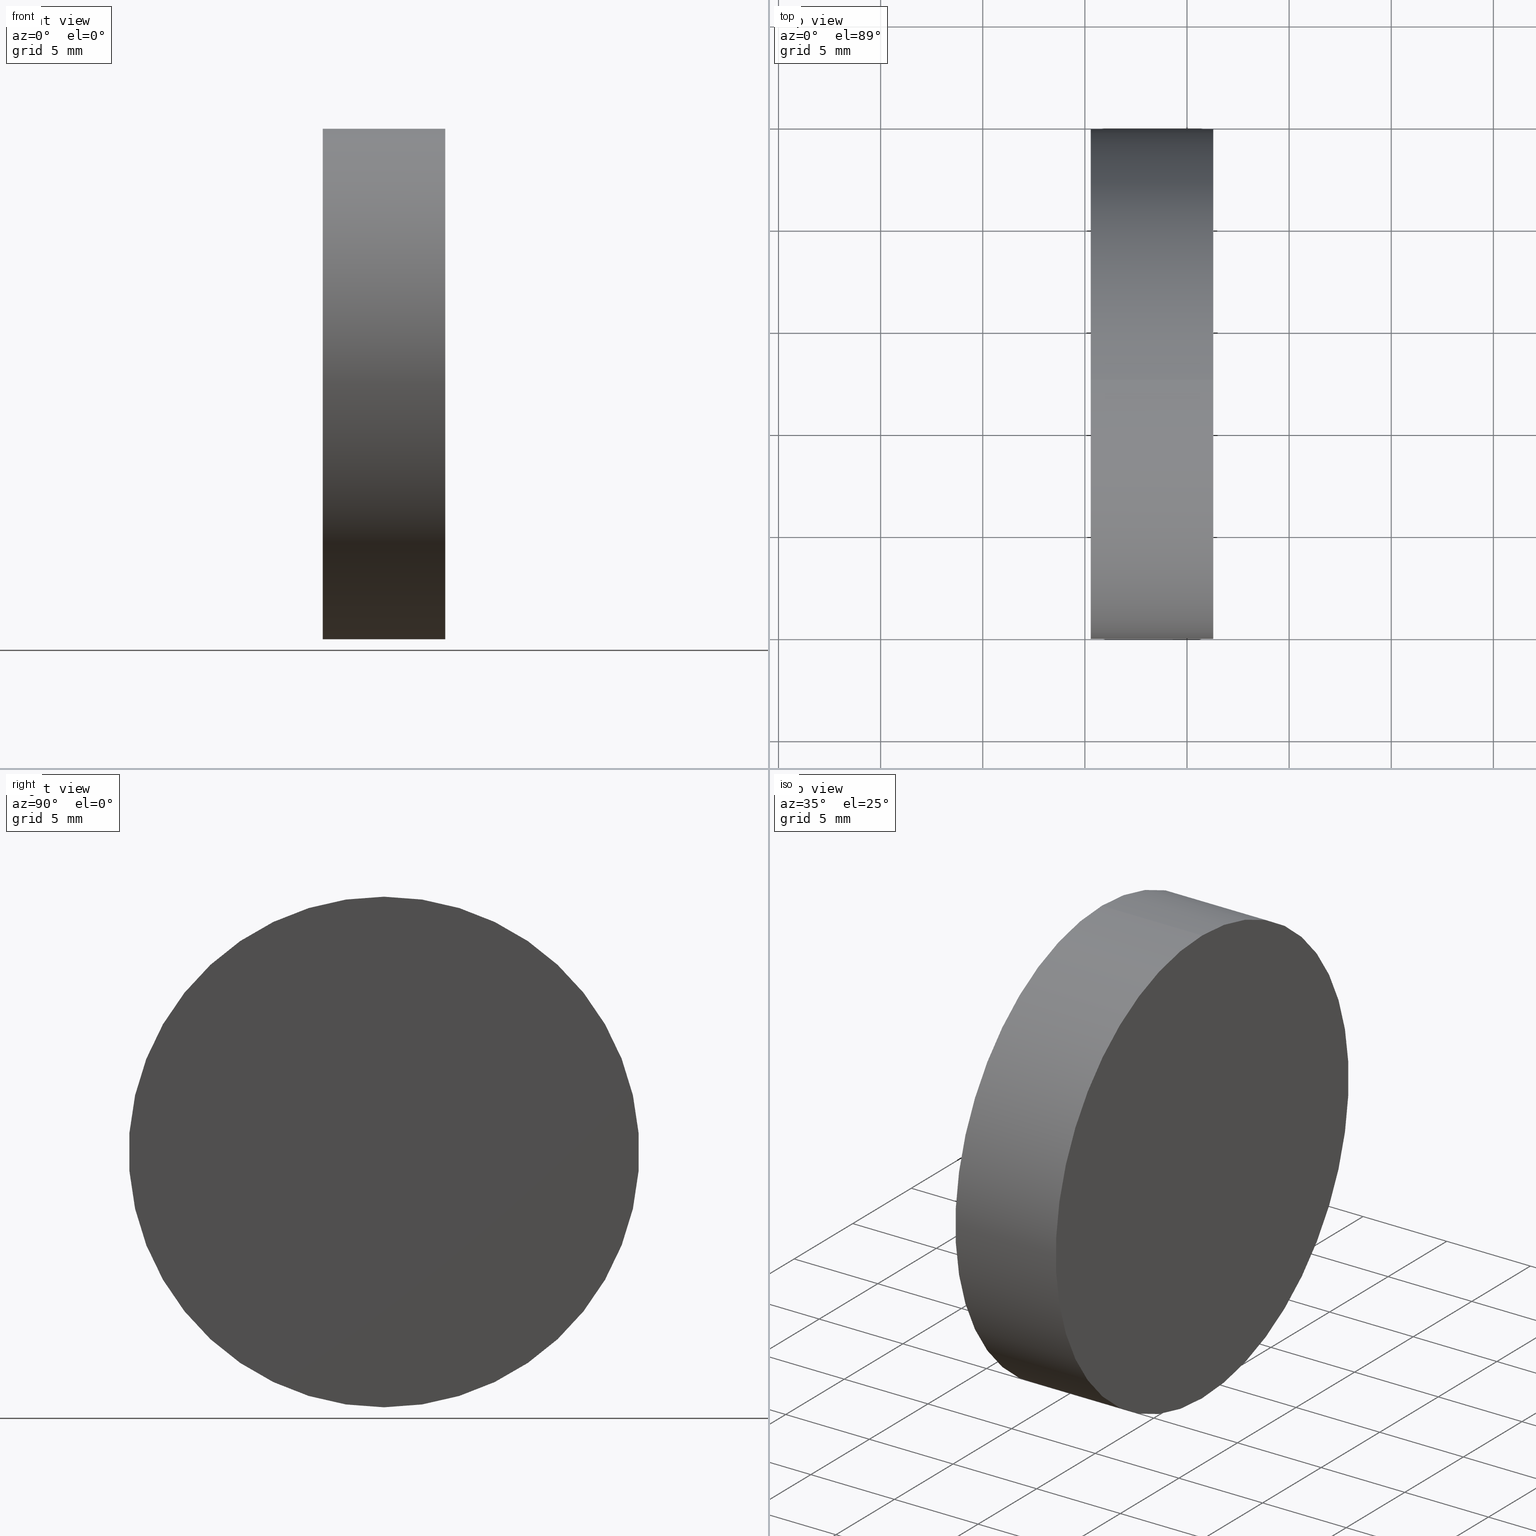
[diagram: canonical four-view strip — front | top / right | iso, engineering-drawing reading convention]
A machine part, canonical four-view strip (front | top / right | iso — engineering-drawing reading convention). The complete STEP part file that produces these views, byte-faithful:
ISO-10303-21;
HEADER;
FILE_DESCRIPTION (( 'STEP AP214' ),
    '1' );
FILE_NAME ('260072.STEP',
    '2019-07-16T03:29:19',
    ( '' ),
    ( '' ),
    'SwSTEP 2.0',
    'SolidWorks 2016',
    '' );
FILE_SCHEMA (( 'AUTOMOTIVE_DESIGN' ));
ENDSEC;

DATA;
#1 = PRODUCT_CONTEXT ( 'NONE', #104, 'mechanical' ) ;
#2 = MECHANICAL_DESIGN_GEOMETRIC_PRESENTATION_REPRESENTATION (  '', ( #93 ), #7 ) ;
#3 = SHAPE_DEFINITION_REPRESENTATION ( #79, #115 ) ;
#4 = ORIENTED_EDGE ( 'NONE', *, *, #132, .T. ) ;
#5 = LINE ( 'NONE', #103, #73 ) ;
#6 = PRODUCT_DEFINITION_CONTEXT ( 'detailed design', #54, 'design' ) ;
#7 =( GEOMETRIC_REPRESENTATION_CONTEXT ( 3 ) GLOBAL_UNCERTAINTY_ASSIGNED_CONTEXT ( ( #99 ) ) GLOBAL_UNIT_ASSIGNED_CONTEXT ( ( #113, #17, #57 ) ) REPRESENTATION_CONTEXT ( 'NONE', 'WORKASPACE' ) );
#8 = AXIS2_PLACEMENT_3D ( 'NONE', #96, #25, #125 ) ;
#9 = ORIENTED_EDGE ( 'NONE', *, *, #37, .T. ) ;
#10 = DIRECTION ( 'NONE',  ( -1.000000000000000000, -0.0000000000000000000, -0.0000000000000000000 ) ) ;
#11 = ADVANCED_FACE ( 'NONE', ( #62 ), #78, .T. ) ;
#12 = FILL_AREA_STYLE_COLOUR ( '', #121 ) ;
#13 = PRODUCT_DEFINITION_FORMATION_WITH_SPECIFIED_SOURCE ( '�κ�', '', #39, .NOT_KNOWN. ) ;
#14 = DIRECTION ( 'NONE',  ( 0.0000000000000000000, 0.0000000000000000000, 1.000000000000000000 ) ) ;
#15 = ORIENTED_EDGE ( 'NONE', *, *, #31, .F. ) ;
#16 = FILL_AREA_STYLE ('',( #77 ) ) ;
#17 =( NAMED_UNIT ( * ) PLANE_ANGLE_UNIT ( ) SI_UNIT ( $, .RADIAN. ) );
#18 = PRODUCT_RELATED_PRODUCT_CATEGORY ( 'part', '', ( #39 ) ) ;
#19 = CIRCLE ( 'NONE', #43, 12.49999999999999600 ) ;
#20 = ORIENTED_EDGE ( 'NONE', *, *, #49, .T. ) ;
#21 = DIRECTION ( 'NONE',  ( -1.000000000000000000, -0.0000000000000000000, -0.0000000000000000000 ) ) ;
#22 = CARTESIAN_POINT ( 'NONE',  ( 266.2862081684760400, 77.29317934901541800, 12.49999999999999600 ) ) ;
#23 = FILL_AREA_STYLE ('',( #12 ) ) ;
#24 = CIRCLE ( 'NONE', #117, 12.49999999999999600 ) ;
#25 = DIRECTION ( 'NONE',  ( -1.000000000000000000, 0.0000000000000000000, -0.0000000000000000000 ) ) ;
#26 = STYLED_ITEM ( 'NONE', ( #131 ), #120 ) ;
#27 = EDGE_LOOP ( 'NONE', ( #69, #20, #35, #118 ) ) ;
#28 = PRESENTATION_STYLE_ASSIGNMENT (( #53 ) ) ;
#29 = CIRCLE ( 'NONE', #110, 12.49999999999999600 ) ;
#30 = SURFACE_STYLE_FILL_AREA ( #16 ) ;
#31 = EDGE_CURVE ( 'NONE', #128, #130, #86, .T. ) ;
#32 = FACE_OUTER_BOUND ( 'NONE', #27, .T. ) ;
#33 = VECTOR ( 'NONE', #64, 1000.000000000000000 ) ;
#34 =( NAMED_UNIT ( * ) SI_UNIT ( $, .STERADIAN. ) SOLID_ANGLE_UNIT ( ) );
#35 = ORIENTED_EDGE ( 'NONE', *, *, #132, .F. ) ;
#36 = DIRECTION ( 'NONE',  ( 1.000000000000000000, 0.0000000000000000000, 0.0000000000000000000 ) ) ;
#37 = EDGE_CURVE ( 'NONE', #128, #71, #5, .T. ) ;
#38 = PLANE ( 'NONE',  #135 ) ;
#39 = PRODUCT ( '260072', '260072', '', ( #1 ) ) ;
#40 = PRESENTATION_LAYER_ASSIGNMENT (  '', '', ( #26 ) ) ;
#41 = ORIENTED_EDGE ( 'NONE', *, *, #91, .T. ) ;
#42 = EDGE_CURVE ( 'NONE', #50, #71, #24, .T. ) ;
#43 = AXIS2_PLACEMENT_3D ( 'NONE', #88, #21, #94 ) ;
#44 = CARTESIAN_POINT ( 'NONE',  ( 254.0008019926160300, 77.29317934901541800, -12.49999999999999600 ) ) ;
#45 = CARTESIAN_POINT ( 'NONE',  ( 260.2862081684760400, 77.29317934901541800, 0.0000000000000000000 ) ) ;
#46 = SURFACE_SIDE_STYLE ('',( #30 ) ) ;
#47 = CARTESIAN_POINT ( 'NONE',  ( 260.2862081684760400, 77.29317934901541800, 0.0000000000000000000 ) ) ;
#48 =( GEOMETRIC_REPRESENTATION_CONTEXT ( 3 ) GLOBAL_UNCERTAINTY_ASSIGNED_CONTEXT ( ( #109 ) ) GLOBAL_UNIT_ASSIGNED_CONTEXT ( ( #56, #114, #34 ) ) REPRESENTATION_CONTEXT ( 'NONE', 'WORKASPACE' ) );
#49 = EDGE_CURVE ( 'NONE', #130, #50, #134, .T. ) ;
#50 = VERTEX_POINT ( 'NONE', #83 ) ;
#51 = CARTESIAN_POINT ( 'NONE',  ( 266.2862081684760400, 77.29317934901541800, 0.0000000000000000000 ) ) ;
#52 = CARTESIAN_POINT ( 'NONE',  ( 254.0008019926160300, 77.29317934901541800, 0.0000000000000000000 ) ) ;
#53 = SURFACE_STYLE_USAGE ( .BOTH. , #46 ) ;
#54 = APPLICATION_CONTEXT ( 'automotive_design' ) ;
#55 = CYLINDRICAL_SURFACE ( 'NONE', #122, 12.49999999999999600 ) ;
#56 =( LENGTH_UNIT ( ) NAMED_UNIT ( * ) SI_UNIT ( .MILLI., .METRE. ) );
#57 =( NAMED_UNIT ( * ) SI_UNIT ( $, .STERADIAN. ) SOLID_ANGLE_UNIT ( ) );
#58 = ORIENTED_EDGE ( 'NONE', *, *, #91, .F. ) ;
#59 = UNCERTAINTY_MEASURE_WITH_UNIT (LENGTH_MEASURE( 1.000000000000000100E-005 ), #112, 'distance_accuracy_value', 'NONE');
#60 = EDGE_LOOP ( 'NONE', ( #4, #61 ) ) ;
#61 = ORIENTED_EDGE ( 'NONE', *, *, #42, .T. ) ;
#62 = FACE_OUTER_BOUND ( 'NONE', #108, .T. ) ;
#63 = DIRECTION ( 'NONE',  ( -1.000000000000000000, -0.0000000000000000000, -0.0000000000000000000 ) ) ;
#64 = DIRECTION ( 'NONE',  ( -1.000000000000000000, -0.0000000000000000000, -0.0000000000000000000 ) ) ;
#65 = CARTESIAN_POINT ( 'NONE',  ( 0.0000000000000000000, 0.0000000000000000000, 0.0000000000000000000 ) ) ;
#66 = SURFACE_SIDE_STYLE ('',( #89 ) ) ;
#67 = DIRECTION ( 'NONE',  ( 0.0000000000000000000, 0.0000000000000000000, -1.000000000000000000 ) ) ;
#68 = CARTESIAN_POINT ( 'NONE',  ( 266.2862081684760400, 77.29317934901541800, -12.49999999999999600 ) ) ;
#69 = ORIENTED_EDGE ( 'NONE', *, *, #31, .T. ) ;
#70 = FACE_OUTER_BOUND ( 'NONE', #90, .T. ) ;
#71 = VERTEX_POINT ( 'NONE', #137 ) ;
#72 =( GEOMETRIC_REPRESENTATION_CONTEXT ( 3 ) GLOBAL_UNCERTAINTY_ASSIGNED_CONTEXT ( ( #59 ) ) GLOBAL_UNIT_ASSIGNED_CONTEXT ( ( #112, #98, #116 ) ) REPRESENTATION_CONTEXT ( 'NONE', 'WORKASPACE' ) );
#73 = VECTOR ( 'NONE', #92, 1000.000000000000000 ) ;
#74 = DIRECTION ( 'NONE',  ( 0.0000000000000000000, 0.0000000000000000000, 1.000000000000000000 ) ) ;
#75 = DIRECTION ( 'NONE',  ( 0.0000000000000000000, 0.0000000000000000000, 1.000000000000000000 ) ) ;
#76 = PLANE ( 'NONE',  #8 ) ;
#77 = FILL_AREA_STYLE_COLOUR ( '', #136 ) ;
#78 = CYLINDRICAL_SURFACE ( 'NONE', #100, 12.49999999999999600 ) ;
#79 = PRODUCT_DEFINITION_SHAPE ( 'NONE', 'NONE',  #101 ) ;
#80 = MECHANICAL_DESIGN_GEOMETRIC_PRESENTATION_REPRESENTATION (  '', ( #26 ), #48 ) ;
#81 = ORIENTED_EDGE ( 'NONE', *, *, #49, .F. ) ;
#82 = DIRECTION ( 'NONE',  ( 0.0000000000000000000, 0.0000000000000000000, 1.000000000000000000 ) ) ;
#83 = CARTESIAN_POINT ( 'NONE',  ( 260.2862081684760400, 77.29317934901541800, -12.49999999999999600 ) ) ;
#84 = DIRECTION ( 'NONE',  ( -1.000000000000000000, -0.0000000000000000000, -0.0000000000000000000 ) ) ;
#85 = DIRECTION ( 'NONE',  ( 1.000000000000000000, 0.0000000000000000000, 0.0000000000000000000 ) ) ;
#86 = CIRCLE ( 'NONE', #129, 12.49999999999999600 ) ;
#87 = CLOSED_SHELL ( 'NONE', ( #133, #102, #11, #123 ) ) ;
#88 = CARTESIAN_POINT ( 'NONE',  ( 260.2862081684760400, 77.29317934901541800, 0.0000000000000000000 ) ) ;
#89 = SURFACE_STYLE_FILL_AREA ( #23 ) ;
#90 = EDGE_LOOP ( 'NONE', ( #15, #58 ) ) ;
#91 = EDGE_CURVE ( 'NONE', #130, #128, #29, .T. ) ;
#92 = DIRECTION ( 'NONE',  ( -1.000000000000000000, -0.0000000000000000000, -0.0000000000000000000 ) ) ;
#93 = STYLED_ITEM ( 'NONE', ( #28 ), #115 ) ;
#94 = DIRECTION ( 'NONE',  ( 0.0000000000000000000, 0.0000000000000000000, 1.000000000000000000 ) ) ;
#95 = DIRECTION ( 'NONE',  ( 0.0000000000000000000, 0.0000000000000000000, 1.000000000000000000 ) ) ;
#96 = CARTESIAN_POINT ( 'NONE',  ( 266.2862081684760400, 77.29317934901541800, 0.0000000000000000000 ) ) ;
#97 = ORIENTED_EDGE ( 'NONE', *, *, #42, .F. ) ;
#98 =( NAMED_UNIT ( * ) PLANE_ANGLE_UNIT ( ) SI_UNIT ( $, .RADIAN. ) );
#99 = UNCERTAINTY_MEASURE_WITH_UNIT (LENGTH_MEASURE( 1.000000000000000100E-005 ), #113, 'distance_accuracy_value', 'NONE');
#100 = AXIS2_PLACEMENT_3D ( 'NONE', #52, #10, #82 ) ;
#101 = PRODUCT_DEFINITION ( 'δ֪', '', #13, #6 ) ;
#102 = ADVANCED_FACE ( 'NONE', ( #70 ), #76, .F. ) ;
#103 = CARTESIAN_POINT ( 'NONE',  ( 254.0008019926160300, 77.29317934901541800, 12.49999999999999600 ) ) ;
#104 = APPLICATION_CONTEXT ( 'automotive_design' ) ;
#105 = CARTESIAN_POINT ( 'NONE',  ( 254.0008019926160300, 77.29317934901541800, 0.0000000000000000000 ) ) ;
#106 = PRESENTATION_LAYER_ASSIGNMENT (  '', '', ( #93 ) ) ;
#107 = DIRECTION ( 'NONE',  ( 0.0000000000000000000, 0.0000000000000000000, 1.000000000000000000 ) ) ;
#108 = EDGE_LOOP ( 'NONE', ( #81, #41, #9, #97 ) ) ;
#109 = UNCERTAINTY_MEASURE_WITH_UNIT (LENGTH_MEASURE( 1.000000000000000100E-005 ), #56, 'distance_accuracy_value', 'NONE');
#110 = AXIS2_PLACEMENT_3D ( 'NONE', #139, #84, #14 ) ;
#111 = DIRECTION ( 'NONE',  ( -1.000000000000000000, -0.0000000000000000000, -0.0000000000000000000 ) ) ;
#112 =( LENGTH_UNIT ( ) NAMED_UNIT ( * ) SI_UNIT ( .MILLI., .METRE. ) );
#113 =( LENGTH_UNIT ( ) NAMED_UNIT ( * ) SI_UNIT ( .MILLI., .METRE. ) );
#114 =( NAMED_UNIT ( * ) PLANE_ANGLE_UNIT ( ) SI_UNIT ( $, .RADIAN. ) );
#115 = ADVANCED_BREP_SHAPE_REPRESENTATION ( '260072', ( #120, #138 ), #72 ) ;
#116 =( NAMED_UNIT ( * ) SI_UNIT ( $, .STERADIAN. ) SOLID_ANGLE_UNIT ( ) );
#117 = AXIS2_PLACEMENT_3D ( 'NONE', #45, #63, #74 ) ;
#118 = ORIENTED_EDGE ( 'NONE', *, *, #37, .F. ) ;
#119 = FACE_OUTER_BOUND ( 'NONE', #60, .T. ) ;
#120 = MANIFOLD_SOLID_BREP ( '��ת1', #87 ) ;
#121 = COLOUR_RGB ( '',1.000000000000000000, 1.000000000000000000, 1.000000000000000000 ) ;
#122 = AXIS2_PLACEMENT_3D ( 'NONE', #105, #111, #107 ) ;
#123 = ADVANCED_FACE ( 'NONE', ( #119 ), #38, .F. ) ;
#124 = DIRECTION ( 'NONE',  ( -1.000000000000000000, -0.0000000000000000000, -0.0000000000000000000 ) ) ;
#125 = DIRECTION ( 'NONE',  ( -0.0000000000000000000, 0.0000000000000000000, 1.000000000000000000 ) ) ;
#126 = SURFACE_STYLE_USAGE ( .BOTH. , #66 ) ;
#127 = APPLICATION_PROTOCOL_DEFINITION ( 'draft international standard', 'automotive_design', 1998, #54 ) ;
#128 = VERTEX_POINT ( 'NONE', #22 ) ;
#129 = AXIS2_PLACEMENT_3D ( 'NONE', #51, #124, #75 ) ;
#130 = VERTEX_POINT ( 'NONE', #68 ) ;
#131 = PRESENTATION_STYLE_ASSIGNMENT (( #126 ) ) ;
#132 = EDGE_CURVE ( 'NONE', #71, #50, #19, .T. ) ;
#133 = ADVANCED_FACE ( 'NONE', ( #32 ), #55, .T. ) ;
#134 = LINE ( 'NONE', #44, #33 ) ;
#135 = AXIS2_PLACEMENT_3D ( 'NONE', #47, #85, #67 ) ;
#136 = COLOUR_RGB ( '',1.000000000000000000, 1.000000000000000000, 1.000000000000000000 ) ;
#137 = CARTESIAN_POINT ( 'NONE',  ( 260.2862081684760400, 77.29317934901541800, 12.49999999999999600 ) ) ;
#138 = AXIS2_PLACEMENT_3D ( 'NONE', #65, #95, #36 ) ;
#139 = CARTESIAN_POINT ( 'NONE',  ( 266.2862081684760400, 77.29317934901541800, 0.0000000000000000000 ) ) ;
#140 = APPLICATION_PROTOCOL_DEFINITION ( 'draft international standard', 'automotive_design', 1998, #104 ) ;
ENDSEC;
END-ISO-10303-21;
